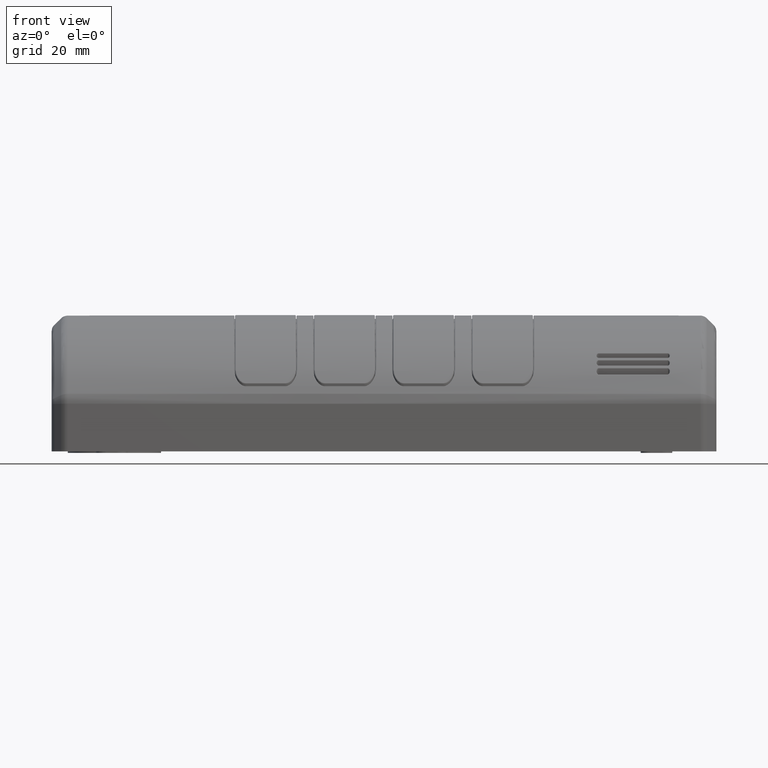
[diagram: clean part render]
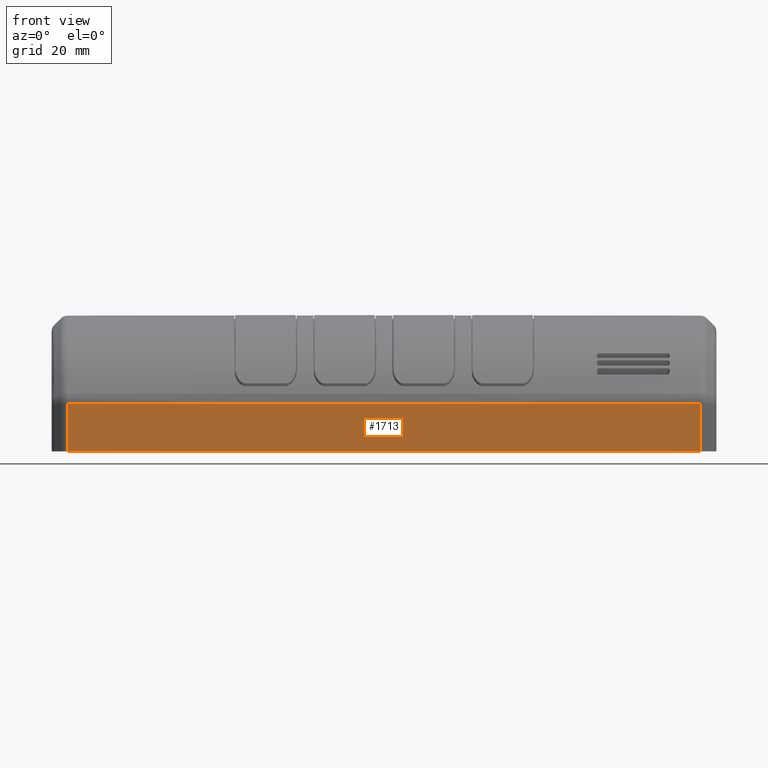
[diagram: same view with one face highlighted and labeled with its STEP entity id]
A machine part, front view. The second image highlights one B-rep face of the part: STEP entity #1713.
In plain terms, the highlighted planar face has unit normal (0, -0.9994, 0.0349).
Its self-contained STEP definition (entity closure, byte-faithful):
#1017=B_SPLINE_CURVE_WITH_KNOTS('',3,(#19312,#19313,#19314,#19315),.UNSPECIFIED.,
 .F.,.F.,(4,4),(0.,1.),.UNSPECIFIED.);
#1018=B_SPLINE_CURVE_WITH_KNOTS('',3,(#19317,#19318,#19319,#19320),.UNSPECIFIED.,
 .F.,.F.,(4,4),(0.,1.),.UNSPECIFIED.);
#1037=B_SPLINE_CURVE_WITH_KNOTS('',3,(#19436,#19437,#19438,#19439),.UNSPECIFIED.,
 .F.,.F.,(4,4),(0.,1.),.UNSPECIFIED.);
#1038=B_SPLINE_CURVE_WITH_KNOTS('',3,(#19441,#19442,#19443,#19444),.UNSPECIFIED.,
 .F.,.F.,(4,4),(0.,1.),.UNSPECIFIED.);
#1039=B_SPLINE_CURVE_WITH_KNOTS('',3,(#19446,#19447,#19448,#19449),.UNSPECIFIED.,
 .F.,.F.,(4,4),(0.,1.),.UNSPECIFIED.);
#1040=B_SPLINE_CURVE_WITH_KNOTS('',3,(#19451,#19452,#19453,#19454),.UNSPECIFIED.,
 .F.,.F.,(4,4),(0.,1.),.UNSPECIFIED.);
#1713=ADVANCED_FACE('',(#2948),#2542,.T.);
#2542=PLANE('',#14528);
#2948=FACE_OUTER_BOUND('',#3757,.T.);
#3757=EDGE_LOOP('',(#4754,#4755,#4756,#4757,#4758,#4759));
#4754=ORIENTED_EDGE('',*,*,#10393,.T.);
#4755=ORIENTED_EDGE('',*,*,#10392,.T.);
#4756=ORIENTED_EDGE('',*,*,#10414,.T.);
#4757=ORIENTED_EDGE('',*,*,#10415,.F.);
#4758=ORIENTED_EDGE('',*,*,#10416,.F.);
#4759=ORIENTED_EDGE('',*,*,#10417,.T.);
#9011=VERTEX_POINT('',#19311);
#9012=VERTEX_POINT('',#19316);
#9013=VERTEX_POINT('',#19321);
#9027=VERTEX_POINT('',#19440);
#9028=VERTEX_POINT('',#19445);
#9029=VERTEX_POINT('',#19450);
#10392=EDGE_CURVE('',#9012,#9011,#1017,.T.);
#10393=EDGE_CURVE('',#9013,#9012,#1018,.T.);
#10414=EDGE_CURVE('',#9011,#9027,#1037,.T.);
#10415=EDGE_CURVE('',#9028,#9027,#1038,.T.);
#10416=EDGE_CURVE('',#9029,#9028,#1039,.T.);
#10417=EDGE_CURVE('',#9029,#9013,#1040,.T.);
#14528=AXIS2_PLACEMENT_3D('',#19455,#15766,#15767);
#15766=DIRECTION('',(0.,-0.999390827019096,0.034899496702501));
#15767=DIRECTION('',(0.,-0.034899496702501,-0.999390827019096));
#19311=CARTESIAN_POINT('',(155.257359312883,-45.0000000000031,1.25000000000001));
#19312=CARTESIAN_POINT('',(24.6000000000025,-45.0000000000031,1.25));
#19313=CARTESIAN_POINT('',(68.152453104296,-45.0000000000031,1.25));
#19314=CARTESIAN_POINT('',(111.70490620859,-45.0000000000031,1.25));
#19315=CARTESIAN_POINT('',(155.257359312883,-45.0000000000031,1.25));
#19316=CARTESIAN_POINT('',(24.6000000000025,-45.0000000000031,1.25));
#19317=CARTESIAN_POINT('',(-53.8573593128783,-45.0000000000031,1.25));
#19318=CARTESIAN_POINT('',(-27.7049062085847,-45.0000000000031,1.25));
#19319=CARTESIAN_POINT('',(-1.55245310429111,-45.0000000000031,1.25));
#19320=CARTESIAN_POINT('',(24.6000000000025,-45.0000000000031,1.25));
#19321=CARTESIAN_POINT('',(-53.8573593128782,-45.0000000000031,1.25000000000001));
#19436=CARTESIAN_POINT('',(155.257359312883,-45.0000000000031,1.25));
#19437=CARTESIAN_POINT('',(155.257359312883,-44.8170656673127,6.48855388506332));
#19438=CARTESIAN_POINT('',(155.257359312883,-44.6341313346223,11.7271077701266));
#19439=CARTESIAN_POINT('',(155.257359312883,-44.4511970019319,16.9656616551899));
#19440=CARTESIAN_POINT('',(155.257359312883,-44.4511970019319,16.9656616551899));
#19441=CARTESIAN_POINT('',(24.6000000000025,-44.4511970019319,16.9656616551899));
#19442=CARTESIAN_POINT('',(68.152453104296,-44.4511970019319,16.9656616551899));
#19443=CARTESIAN_POINT('',(111.70490620859,-44.4511970019319,16.9656616551899));
#19444=CARTESIAN_POINT('',(155.257359312883,-44.4511970019319,16.9656616551899));
#19445=CARTESIAN_POINT('',(24.6000000000025,-44.4511970019319,16.9656616551899));
#19446=CARTESIAN_POINT('',(-53.8573593128783,-44.4511970019319,16.9656616551899));
#19447=CARTESIAN_POINT('',(-27.7049062085847,-44.4511970019319,16.9656616551899));
#19448=CARTESIAN_POINT('',(-1.55245310429111,-44.4511970019319,16.9656616551899));
#19449=CARTESIAN_POINT('',(24.6000000000025,-44.4511970019319,16.9656616551899));
#19450=CARTESIAN_POINT('',(-53.8573593128782,-44.4511970019319,16.9656616551899));
#19451=CARTESIAN_POINT('',(-53.8573593128783,-44.4511970019319,16.9656616551899));
#19452=CARTESIAN_POINT('',(-53.8573593128783,-44.6341313346223,11.7271077701266));
#19453=CARTESIAN_POINT('',(-53.8573593128783,-44.8170656673127,6.48855388506332));
#19454=CARTESIAN_POINT('',(-53.8573593128783,-45.0000000000031,1.25));
#19455=CARTESIAN_POINT('',(131.900000000002,-44.3925318489314,18.6456118353939));